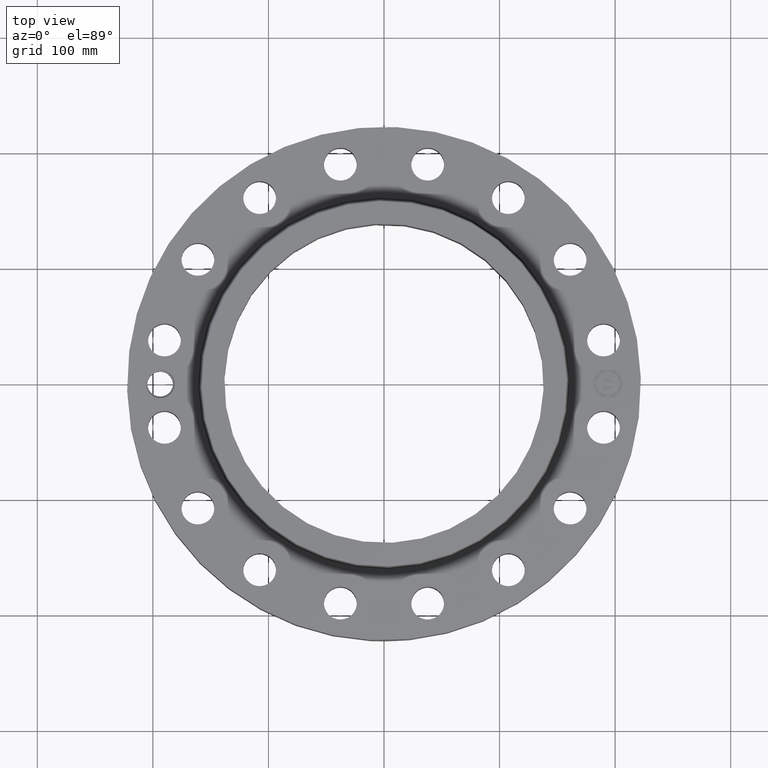
[diagram: clean part render]
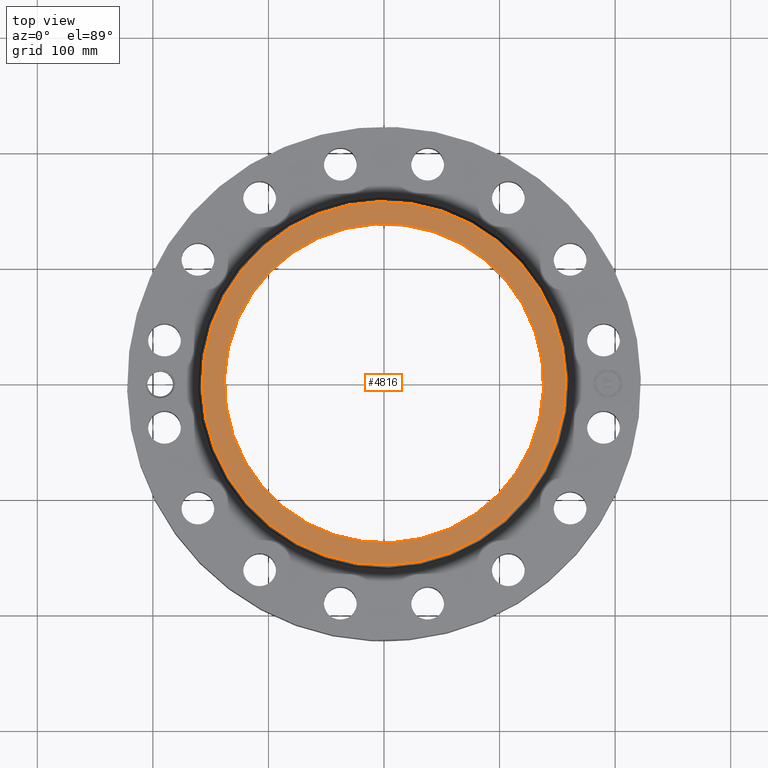
[diagram: same view with one face highlighted and labeled with its STEP entity id]
A machine part, top view. The second image highlights one B-rep face of the part: STEP entity #4816.
In plain terms, the highlighted planar face has unit normal (0, 0, -1).
Its self-contained STEP definition (entity closure, byte-faithful):
#3718=AXIS2_PLACEMENT_3D('Circle Axis2P3D',#3716,#3717,$) ;
#3737=AXIS2_PLACEMENT_3D('Circle Axis2P3D',#3735,#3736,$) ;
#4792=AXIS2_PLACEMENT_3D('Plane Axis2P3D',#4789,#4790,#4791) ;
#4800=AXIS2_PLACEMENT_3D('Circle Axis2P3D',#4798,#4799,$) ;
#4809=AXIS2_PLACEMENT_3D('Circle Axis2P3D',#4807,#4808,$) ;
#3713=CARTESIAN_POINT('Vertex',(2.96777761288,5.43248048115,2.93300000001)) ;
#3716=CARTESIAN_POINT('Axis2P3D Location',(0.,0.,2.93300000001)) ;
#3720=CARTESIAN_POINT('Vertex',(-2.96777761288,-5.43248048115,2.93300000001)) ;
#3735=CARTESIAN_POINT('Axis2P3D Location',(0.,0.,2.93300000001)) ;
#4789=CARTESIAN_POINT('Axis2P3D Location',(0.,6.19027851857,2.93300000001)) ;
#4798=CARTESIAN_POINT('Axis2P3D Location',(0.,0.,2.93300000001)) ;
#4802=CARTESIAN_POINT('Vertex',(-2.60807493002,-4.7740491367,2.93300000001)) ;
#4804=CARTESIAN_POINT('Vertex',(2.60807493002,4.7740491367,2.93300000001)) ;
#4807=CARTESIAN_POINT('Axis2P3D Location',(0.,0.,2.93300000001)) ;
#3717=DIRECTION('Axis2P3D Direction',(0.,0.,-0.0393700787402)) ;
#3736=DIRECTION('Axis2P3D Direction',(0.,0.,-0.0393700787402)) ;
#4790=DIRECTION('Axis2P3D Direction',(0.,0.,-0.0393700787402)) ;
#4791=DIRECTION('Axis2P3D XDirection',(0.0393700787402,0.,0.)) ;
#4799=DIRECTION('Axis2P3D Direction',(0.,0.,-0.0393700787402)) ;
#4808=DIRECTION('Axis2P3D Direction',(0.,0.,-0.0393700787402)) ;
#4795=ORIENTED_EDGE('',*,*,#3722,.F.) ;
#4796=ORIENTED_EDGE('',*,*,#3739,.F.) ;
#4813=ORIENTED_EDGE('',*,*,#4806,.T.) ;
#4814=ORIENTED_EDGE('',*,*,#4811,.T.) ;
#4815=FACE_BOUND('',#4812,.T.) ;
#4816=ADVANCED_FACE('PartBody',(#4797,#4815),#4793,.F.) ;
#3719=CIRCLE('generated circle',#3718,6.19027851857) ;
#3738=CIRCLE('generated circle',#3737,6.19027851857) ;
#4801=CIRCLE('generated circle',#4800,5.44000000002) ;
#4810=CIRCLE('generated circle',#4809,5.44000000002) ;
#3722=EDGE_CURVE('',#3714,#3721,#3719,.T.) ;
#3739=EDGE_CURVE('',#3721,#3714,#3738,.T.) ;
#4806=EDGE_CURVE('',#4803,#4805,#4801,.T.) ;
#4811=EDGE_CURVE('',#4805,#4803,#4810,.T.) ;
#4794=EDGE_LOOP('',(#4795,#4796)) ;
#4812=EDGE_LOOP('',(#4813,#4814)) ;
#4797=FACE_OUTER_BOUND('',#4794,.T.) ;
#4793=PLANE('',#4792) ;
#3714=VERTEX_POINT('',#3713) ;
#3721=VERTEX_POINT('',#3720) ;
#4803=VERTEX_POINT('',#4802) ;
#4805=VERTEX_POINT('',#4804) ;